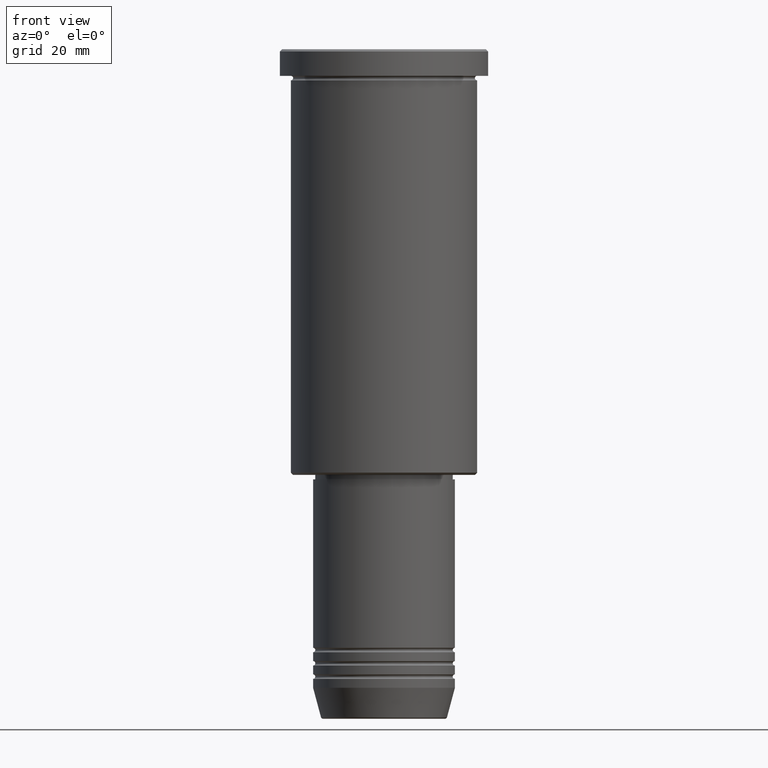
[diagram: clean part render]
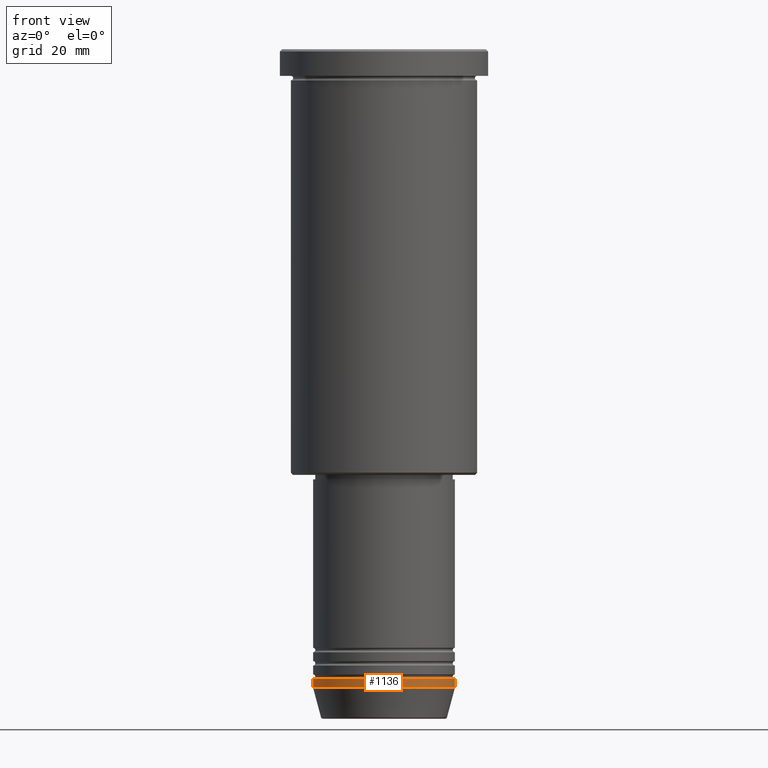
[diagram: same view with one face highlighted and labeled with its STEP entity id]
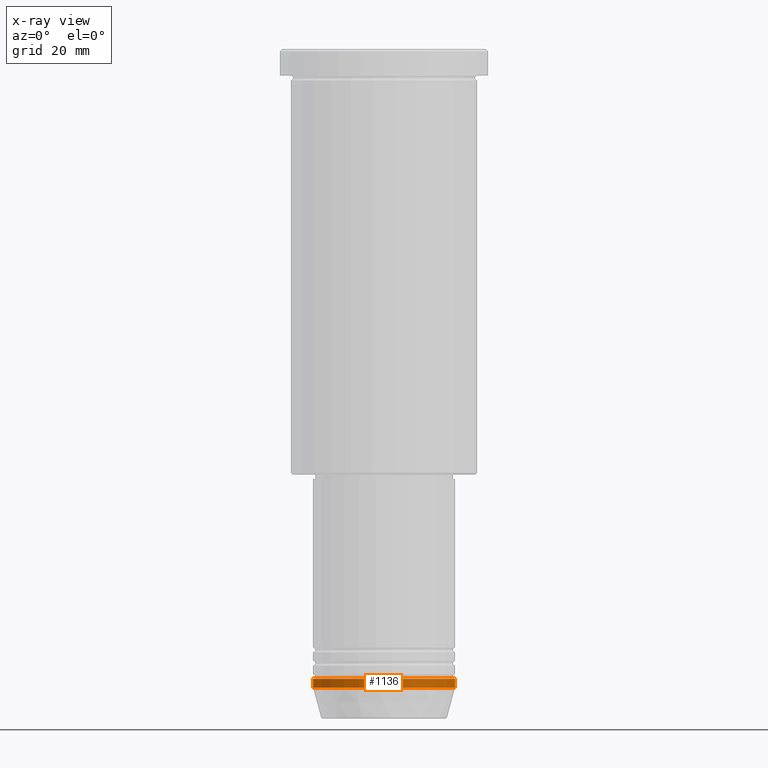
[diagram: x-ray of the same camera — body ghosted, the highlighted face saturated]
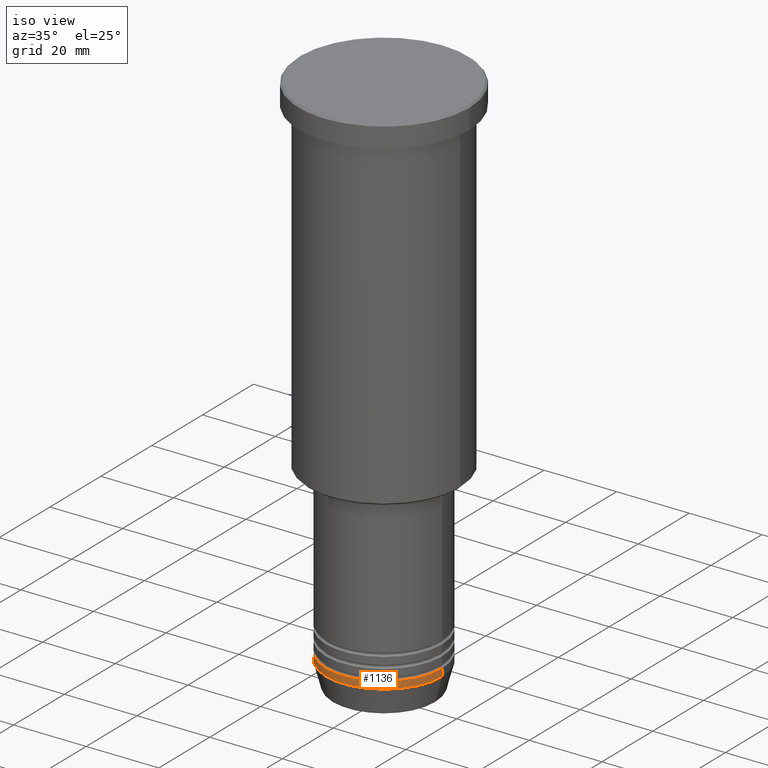
[diagram: same view with one face highlighted and labeled with its STEP entity id]
A machine part, front view. The second image highlights one B-rep face of the part: STEP entity #1136.
The next image is the same camera in x-ray: the body ghosted, the highlighted face saturated — about 0% of this face is hidden behind the body in this view.
A second angle (iso view) of the same face is appended — the face is thin or edge-on in the first view.
In plain terms, the highlighted cylindrical surface (partial cylindrical patch) has radius 16 mm, axis along (-0, -0, 1).
Its self-contained STEP definition (entity closure, byte-faithful):
#18 = VERTEX_POINT ( 'NONE', #690 ) ;
#48 = AXIS2_PLACEMENT_3D ( 'NONE', #1107, #852, #1034 ) ;
#55 = LINE ( 'NONE', #693, #903 ) ;
#68 = AXIS2_PLACEMENT_3D ( 'NONE', #825, #1093, #648 ) ;
#145 = ORIENTED_EDGE ( 'NONE', *, *, #346, .T. ) ;
#208 = CARTESIAN_POINT ( 'NONE',  ( -16.00000000000000000, 1.959434878635765131E-15, -142.0000000000000284 ) ) ;
#259 = EDGE_CURVE ( 'NONE', #921, #1115, #55, .T. ) ;
#316 = VECTOR ( 'NONE', #805, 1000.000000000000000 ) ;
#346 = EDGE_CURVE ( 'NONE', #18, #921, #964, .T. ) ;
#376 = VERTEX_POINT ( 'NONE', #208 ) ;
#393 = EDGE_CURVE ( 'NONE', #376, #1115, #1151, .T. ) ;
#527 = LINE ( 'NONE', #890, #316 ) ;
#561 = CYLINDRICAL_SURFACE ( 'NONE', #68, 16.00000000000000000 ) ;
#567 = DIRECTION ( 'NONE',  ( 1.000000000000000000, 0.000000000000000000, 0.000000000000000000 ) ) ;
#585 = EDGE_CURVE ( 'NONE', #18, #376, #527, .T. ) ;
#595 = ORIENTED_EDGE ( 'NONE', *, *, #393, .F. ) ;
#638 = CARTESIAN_POINT ( 'NONE',  ( 16.00000000000000000, 0.000000000000000000, -142.0000000000000284 ) ) ;
#648 = DIRECTION ( 'NONE',  ( 1.000000000000000000, 0.000000000000000000, 0.000000000000000000 ) ) ;
#690 = CARTESIAN_POINT ( 'NONE',  ( -16.00000000000000000, 1.959434878635765131E-15, -144.0000000000000284 ) ) ;
#693 = CARTESIAN_POINT ( 'NONE',  ( 16.00000000000000000, 0.000000000000000000, 0.000000000000000000 ) ) ;
#725 = DIRECTION ( 'NONE',  ( -0.000000000000000000, -0.000000000000000000, 1.000000000000000000 ) ) ;
#726 = FACE_OUTER_BOUND ( 'NONE', #1109, .T. ) ;
#767 = AXIS2_PLACEMENT_3D ( 'NONE', #1015, #725, #567 ) ;
#793 = DIRECTION ( 'NONE',  ( -0.000000000000000000, -0.000000000000000000, 1.000000000000000000 ) ) ;
#805 = DIRECTION ( 'NONE',  ( -0.000000000000000000, -0.000000000000000000, 1.000000000000000000 ) ) ;
#812 = ORIENTED_EDGE ( 'NONE', *, *, #585, .F. ) ;
#825 = CARTESIAN_POINT ( 'NONE',  ( 0.000000000000000000, 0.000000000000000000, 0.000000000000000000 ) ) ;
#852 = DIRECTION ( 'NONE',  ( -0.000000000000000000, -0.000000000000000000, 1.000000000000000000 ) ) ;
#890 = CARTESIAN_POINT ( 'NONE',  ( -16.00000000000000000, 1.959434878635765131E-15, 0.000000000000000000 ) ) ;
#903 = VECTOR ( 'NONE', #793, 1000.000000000000000 ) ;
#921 = VERTEX_POINT ( 'NONE', #952 ) ;
#952 = CARTESIAN_POINT ( 'NONE',  ( 16.00000000000000000, 0.000000000000000000, -144.0000000000000284 ) ) ;
#964 = CIRCLE ( 'NONE', #48, 16.00000000000000000 ) ;
#1015 = CARTESIAN_POINT ( 'NONE',  ( 0.000000000000000000, 0.000000000000000000, -142.0000000000000284 ) ) ;
#1034 = DIRECTION ( 'NONE',  ( 1.000000000000000000, 0.000000000000000000, 0.000000000000000000 ) ) ;
#1093 = DIRECTION ( 'NONE',  ( -0.000000000000000000, -0.000000000000000000, 1.000000000000000000 ) ) ;
#1107 = CARTESIAN_POINT ( 'NONE',  ( 0.000000000000000000, 0.000000000000000000, -144.0000000000000284 ) ) ;
#1109 = EDGE_LOOP ( 'NONE', ( #812, #145, #1163, #595 ) ) ;
#1115 = VERTEX_POINT ( 'NONE', #638 ) ;
#1136 = ADVANCED_FACE ( 'NONE', ( #726 ), #561, .T. ) ;
#1151 = CIRCLE ( 'NONE', #767, 16.00000000000000000 ) ;
#1163 = ORIENTED_EDGE ( 'NONE', *, *, #259, .T. ) ;